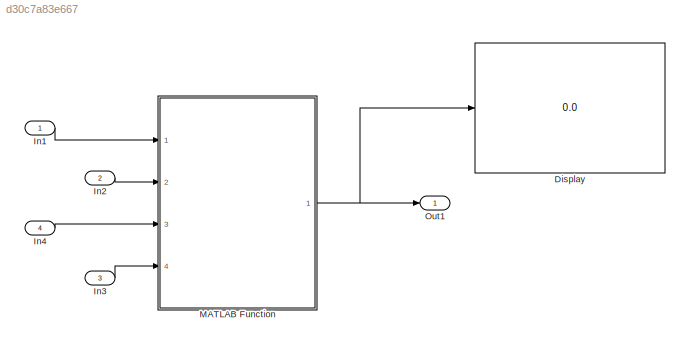
MODEL slx_d30c7a83e667
KIND model
CONFIG AbsTol = auto
CONFIG EnableMultiTasking = off
CONFIG FixedStep = auto
CONFIG MaxStep = auto
CONFIG MinStep = auto
CONFIG RelTol = 1e-3
CONFIG SampleTimeConstraint = Unconstrained
CONFIG Solver = VariableStepAuto
CONFIG SolverName = VariableStepAuto
CONFIG StartTime = 0.0
CONFIG StopTime = 10.0
BLOCK [Display] Display
  Decimation = 1
  Ports = [1]
BLOCK [Inport] In1
  IconDisplay = Port number
  OutDataTypeStr = double
  PortDimensions = 3
BLOCK [Inport] In2
  IconDisplay = Port number
  OutDataTypeStr = double
  Port = 2
  PortDimensions = 1
BLOCK [Inport] In3
  IconDisplay = Port number
  OutDataTypeStr = double
  Port = 3
  PortDimensions = 1
BLOCK [Inport] In4
  IconDisplay = Port number
  OutDataTypeStr = double
  Port = 4
  PortDimensions = [6,6]
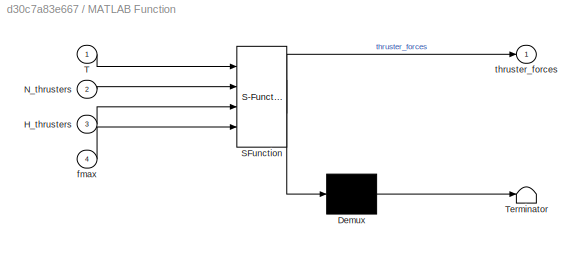
BLOCK [SubSystem] MATLAB Function
  ErrorFcn = Stateflow.Translate.translate
  PermitHierarchicalResolution = ExplicitOnly
  Ports = [4, 1]
  RequestExecContextInheritance = off
  SFBlockType = MATLAB Function
  TreatAsAtomicUnit = on
  Variant = off
BLOCK [Demux] MATLAB Function/ Demux 
  Outputs = 1
  Ports = [1, 1]
BLOCK [S-Function] MATLAB Function/ SFunction 
  EnableBusSupport = on
  FunctionName = sf_sfun
  PortCounts = [4 2]
  Ports = [4, 2]
  SFcnIsStateOwnerBlock = off
  SFunctionDeploymentMode = off
  Tag = Stateflow S-Function bio_matfunc_allocateThrust 40
BLOCK [Terminator] MATLAB Function/ Terminator 
BLOCK [Inport] MATLAB Function/H_thrusters
  IconDisplay = Port number
  Port = 3
BLOCK [Inport] MATLAB Function/N_thrusters
  IconDisplay = Port number
  Port = 2
BLOCK [Inport] MATLAB Function/T
  IconDisplay = Port number
BLOCK [Inport] MATLAB Function/fmax
  IconDisplay = Port number
  Port = 4
BLOCK [Outport] MATLAB Function/thruster_forces
  IconDisplay = Port number
BLOCK [Outport] Out1
  IconDisplay = Port number
LINE In1:1 -> MATLAB Function:1
LINE In2:1 -> MATLAB Function:2
LINE In3:1 -> MATLAB Function:4
LINE In4:1 -> MATLAB Function:3
NET MATLAB Function:1 -> Display:1, Out1:1
note: NET lines group one-source signal fan-out (src -> all destinations, sorted); 1:1 wires keep LINE
CHART MATLAB Function states=1 transitions=1
  STATE_LABEL 'eML_blk_kernel()'
  STATE_LABEL "SCRIPT:\nfunction thruster_forces = allocateThrust(T,N_thrusters,H_thrusters,fmax)\n%#codegen\n\nthruster_forces = zeros(6,1);\nH = H_thrusters(4:6,:);\nusat = zeros(6,1);\nu = zeros(6,1);\nflag = 0;\nwhile flag == 0\n    flag = 1;\n    %u = pinv(H)*T;\n    u = H'*inv(H*H')*T;\n    for j = 1:N_thrusters\n        if u(j) < -0.000000001\n            u(j) = 0;\n            %usat(j) = 0;\n            %T = T - H*usat;\n...<+114ch>"
